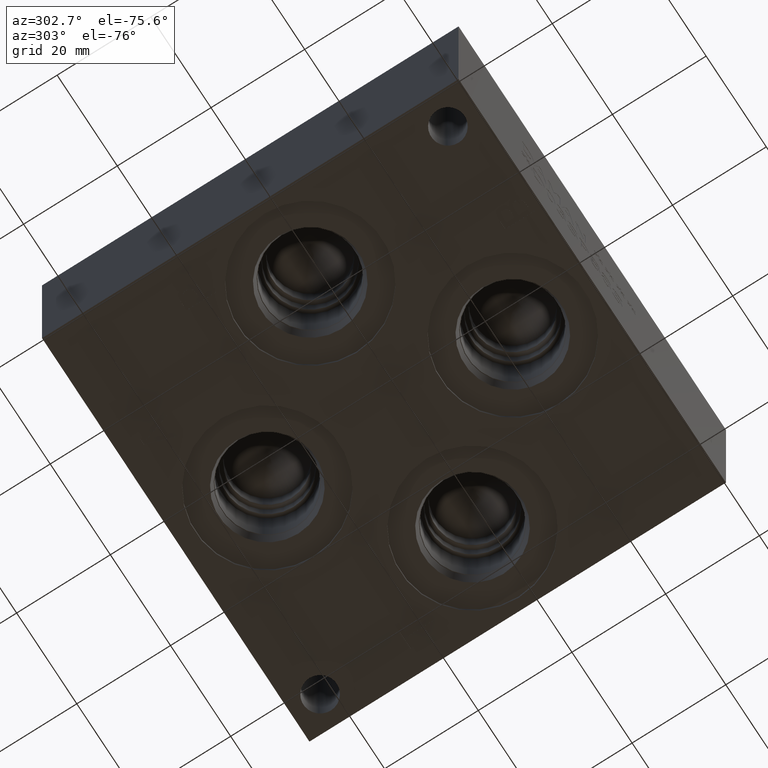
[diagram: clean part render]
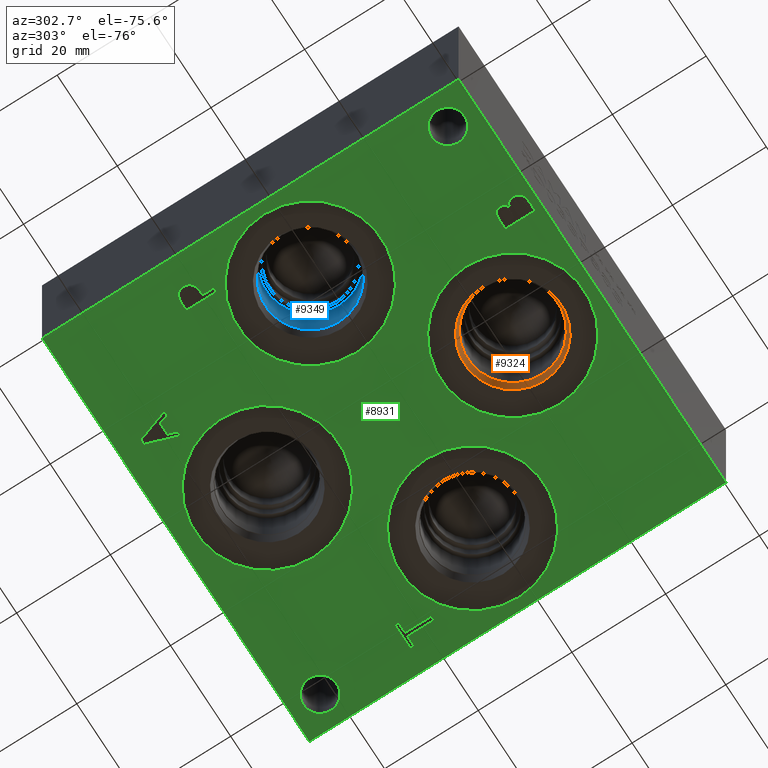
[diagram: same view with three faces highlighted in distinct colors, each labeled with its STEP entity id]
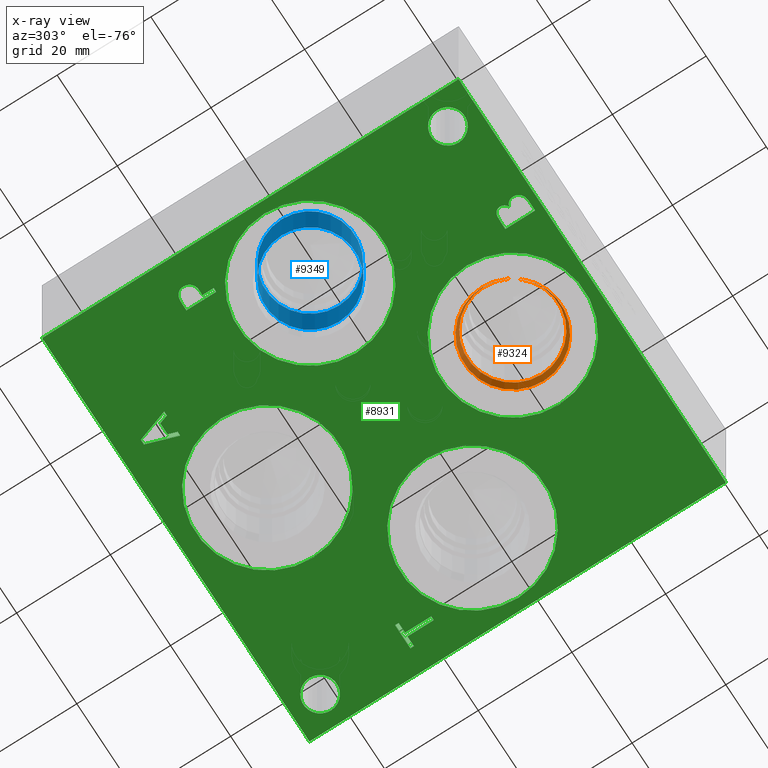
[diagram: x-ray of the same camera — body ghosted, the three highlighted faces saturated]
A machine part, auxiliary view with three faces highlighted in distinct colors.
The next image is the same camera in x-ray (body ghosted, the three faces saturated) — at least one of them is partly hidden behind the body in this view.
Their STEP definitions:

[orange] entity #9324 — the highlighted conical surface has half-angle 15 deg.
#18=CONICAL_SURFACE('',#9708,9.96315000000001,0.261799387657294);
#106=CIRCLE('',#9706,10.2997);
#107=CIRCLE('',#9707,10.2997);
#108=CIRCLE('',#9709,9.6266);
#109=CIRCLE('',#9710,9.6266);
#965=FACE_OUTER_BOUND('',#1490,.T.);
#1490=EDGE_LOOP('',(#8043,#8044,#8045,#8046,#8047,#8048));
#2400=LINE('',#15863,#3276);
#3276=VECTOR('',#11304,9.96315000000001);
#4378=VERTEX_POINT('',#15857);
#4379=VERTEX_POINT('',#15858);
#4380=VERTEX_POINT('',#15862);
#4381=VERTEX_POINT('',#15864);
#5631=EDGE_CURVE('',#4378,#4379,#106,.T.);
#5632=EDGE_CURVE('',#4379,#4378,#107,.T.);
#5633=EDGE_CURVE('',#4379,#4380,#2400,.T.);
#5634=EDGE_CURVE('',#4380,#4381,#108,.T.);
#5635=EDGE_CURVE('',#4381,#4380,#109,.T.);
#8043=ORIENTED_EDGE('',*,*,#5631,.F.);
#8044=ORIENTED_EDGE('',*,*,#5632,.F.);
#8045=ORIENTED_EDGE('',*,*,#5633,.T.);
#8046=ORIENTED_EDGE('',*,*,#5634,.T.);
#8047=ORIENTED_EDGE('',*,*,#5635,.T.);
#8048=ORIENTED_EDGE('',*,*,#5633,.F.);
#9324=ADVANCED_FACE('',(#965),#18,.F.);
#9706=AXIS2_PLACEMENT_3D('',#15859,#11298,#11299);
#9707=AXIS2_PLACEMENT_3D('',#15860,#11300,#11301);
#9708=AXIS2_PLACEMENT_3D('',#15861,#11302,#11303);
#9709=AXIS2_PLACEMENT_3D('',#15865,#11305,#11306);
#9710=AXIS2_PLACEMENT_3D('',#15866,#11307,#11308);
#11298=DIRECTION('center_axis',(0.,0.,1.));
#11299=DIRECTION('ref_axis',(1.,0.,0.));
#11300=DIRECTION('center_axis',(0.,0.,1.));
#11301=DIRECTION('ref_axis',(1.,0.,0.));
#11302=DIRECTION('center_axis',(0.,0.,-1.));
#11303=DIRECTION('ref_axis',(1.,0.,0.));
#11304=DIRECTION('',(0.258819044965499,3.16961914975373E-17,0.965925826325783));
#11305=DIRECTION('center_axis',(0.,0.,1.));
#11306=DIRECTION('ref_axis',(1.,0.,0.));
#11307=DIRECTION('center_axis',(0.,0.,1.));
#11308=DIRECTION('ref_axis',(1.,0.,0.));
#15857=CARTESIAN_POINT('',(55.5371,17.4625,0.7874));
#15858=CARTESIAN_POINT('',(34.9377,17.4625,0.787400000000001));
#15859=CARTESIAN_POINT('Origin',(45.2374,17.4625,0.7874));
#15860=CARTESIAN_POINT('Origin',(45.2374,17.4625,0.7874));
#15861=CARTESIAN_POINT('Origin',(45.2374,17.4625,2.0434217));
#15862=CARTESIAN_POINT('',(35.6108,17.4625,3.2994434));
#15863=CARTESIAN_POINT('',(35.27425,17.4625,2.0434217));
#15864=CARTESIAN_POINT('',(54.864,17.4625,3.2994434));
#15865=CARTESIAN_POINT('Origin',(45.2374,17.4625,3.2994434));
#15866=CARTESIAN_POINT('Origin',(45.2374,17.4625,3.2994434));

[blue] entity #9349 — the highlighted cylindrical surface (bore or boss wall) has radius 9.525 mm, axis along (0, 0, -1).
#55=CYLINDRICAL_SURFACE('',#9771,9.525);
#94=CIRCLE('',#9687,9.525);
#143=CIRCLE('',#9768,9.525);
#144=CIRCLE('',#9769,9.525);
#990=FACE_OUTER_BOUND('',#1519,.T.);
#1519=EDGE_LOOP('',(#8158,#8159,#8160,#8161,#8162));
#2421=LINE('',#15988,#3297);
#3297=VECTOR('',#11451,9.525);
#4366=VERTEX_POINT('',#15820);
#4419=VERTEX_POINT('',#15981);
#4420=VERTEX_POINT('',#15982);
#5614=EDGE_CURVE('',#4366,#4366,#94,.T.);
#5689=EDGE_CURVE('',#4419,#4420,#143,.T.);
#5690=EDGE_CURVE('',#4420,#4419,#144,.T.);
#5692=EDGE_CURVE('',#4366,#4420,#2421,.T.);
#8158=ORIENTED_EDGE('',*,*,#5614,.T.);
#8159=ORIENTED_EDGE('',*,*,#5692,.T.);
#8160=ORIENTED_EDGE('',*,*,#5689,.F.);
#8161=ORIENTED_EDGE('',*,*,#5690,.F.);
#8162=ORIENTED_EDGE('',*,*,#5692,.F.);
#9349=ADVANCED_FACE('',(#990),#55,.F.);
#9687=AXIS2_PLACEMENT_3D('',#15822,#11255,#11256);
#9768=AXIS2_PLACEMENT_3D('',#15983,#11443,#11444);
#9769=AXIS2_PLACEMENT_3D('',#15984,#11445,#11446);
#9771=AXIS2_PLACEMENT_3D('',#15987,#11449,#11450);
#11255=DIRECTION('center_axis',(0.,0.,-1.));
#11256=DIRECTION('ref_axis',(1.,0.,0.));
#11443=DIRECTION('center_axis',(0.,0.,-1.));
#11444=DIRECTION('ref_axis',(1.,0.,0.));
#11445=DIRECTION('center_axis',(0.,0.,-1.));
#11446=DIRECTION('ref_axis',(1.,0.,0.));
#11449=DIRECTION('center_axis',(0.,0.,-1.));
#11450=DIRECTION('ref_axis',(1.,0.,0.));
#11451=DIRECTION('',(0.,0.,1.));
#15820=CARTESIAN_POINT('',(7.9502,42.8752,3.4036));
#15822=CARTESIAN_POINT('Origin',(17.4752,42.8752,3.4036));
#15981=CARTESIAN_POINT('',(27.0002,42.8752,15.0622));
#15982=CARTESIAN_POINT('',(7.9502,42.8752,15.0622));
#15983=CARTESIAN_POINT('Origin',(17.4752,42.8752,15.0622));
#15984=CARTESIAN_POINT('Origin',(17.4752,42.8752,15.0622));
#15987=CARTESIAN_POINT('Origin',(17.4752,42.8752,7.5311));
#15988=CARTESIAN_POINT('',(7.9502,42.8752,7.5311));

[green] entity #8931 — the highlighted planar face has unit normal (0, 0, 1).
#76=CIRCLE('',#9418,15.3162);
#77=CIRCLE('',#9419,15.3162);
#78=CIRCLE('',#9420,15.3162);
#79=CIRCLE('',#9421,15.3162);
#80=CIRCLE('',#9422,15.3162);
#81=CIRCLE('',#9423,15.3162);
#82=CIRCLE('',#9424,15.3162);
#83=CIRCLE('',#9425,15.3162);
#84=CIRCLE('',#9426,3.5687);
#85=CIRCLE('',#9427,3.5687);
#213=FACE_BOUND('',#1054,.T.);
#214=FACE_BOUND('',#1055,.T.);
#215=FACE_BOUND('',#1056,.T.);
#216=FACE_BOUND('',#1057,.T.);
#217=FACE_BOUND('',#1058,.T.);
#218=FACE_BOUND('',#1059,.T.);
#219=FACE_BOUND('',#1060,.T.);
#220=FACE_BOUND('',#1061,.T.);
#221=FACE_BOUND('',#1062,.T.);
#222=FACE_BOUND('',#1063,.T.);
#288=PLANE('',#9417);
#572=FACE_OUTER_BOUND('',#1053,.T.);
#1053=EDGE_LOOP('',(#5875,#5876,#5877,#5878));
#1054=EDGE_LOOP('',(#5879,#5880,#5881,#5882,#5883,#5884,#5885,#5886));
#1055=EDGE_LOOP('',(#5887,#5888));
#1056=EDGE_LOOP('',(#5889,#5890));
#1057=EDGE_LOOP('',(#5891,#5892));
#1058=EDGE_LOOP('',(#5893,#5894));
#1059=EDGE_LOOP('',(#5895));
#1060=EDGE_LOOP('',(#5896));
#1061=EDGE_LOOP('',(#5897,#5898,#5899,#5900,#5901,#5902,#5903,#5904,#5905,
#5906));
#1062=EDGE_LOOP('',(#5907,#5908,#5909,#5910,#5911,#5912,#5913,#5914));
#1063=EDGE_LOOP('',(#5915,#5916,#5917,#5918,#5919,#5920,#5921,#5922,#5923));
#1598=LINE('',#11846,#2474);
#1601=LINE('',#11852,#2477);
#1604=LINE('',#11858,#2480);
#1607=LINE('',#11864,#2483);
#1610=LINE('',#11870,#2486);
#1614=LINE('',#11913,#2490);
#1615=LINE('',#11915,#2491);
#1616=LINE('',#11917,#2492);
#1617=LINE('',#11918,#2493);
#1618=LINE('',#11921,#2494);
#1619=LINE('',#11923,#2495);
#1620=LINE('',#11925,#2496);
#1621=LINE('',#11927,#2497);
#1622=LINE('',#11929,#2498);
#1623=LINE('',#11931,#2499);
#1624=LINE('',#11933,#2500);
#1625=LINE('',#11934,#2501);
#1626=LINE('',#11972,#2502);
#1627=LINE('',#11974,#2503);
#1628=LINE('',#11976,#2504);
#1629=LINE('',#11992,#2505);
#1630=LINE('',#11995,#2506);
#1631=LINE('',#11997,#2507);
#1632=LINE('',#11999,#2508);
#1633=LINE('',#12001,#2509);
#1634=LINE('',#12003,#2510);
#1635=LINE('',#12005,#2511);
#1636=LINE('',#12007,#2512);
#1637=LINE('',#12008,#2513);
#2474=VECTOR('',#9908,10.);
#2477=VECTOR('',#9913,10.);
#2480=VECTOR('',#9918,10.);
#2483=VECTOR('',#9923,10.);
#2486=VECTOR('',#9928,10.);
#2490=VECTOR('',#9936,10.);
#2491=VECTOR('',#9937,10.);
#2492=VECTOR('',#9938,10.);
#2493=VECTOR('',#9939,10.);
#2494=VECTOR('',#9940,10.);
#2495=VECTOR('',#9941,10.);
#2496=VECTOR('',#9942,10.);
#2497=VECTOR('',#9943,10.);
#2498=VECTOR('',#9944,10.);
#2499=VECTOR('',#9945,10.);
#2500=VECTOR('',#9946,10.);
#2501=VECTOR('',#9947,10.);
#2502=VECTOR('',#9968,10.);
#2503=VECTOR('',#9969,10.);
#2504=VECTOR('',#9970,10.);
#2505=VECTOR('',#9971,10.);
#2506=VECTOR('',#9972,10.);
#2507=VECTOR('',#9973,10.);
#2508=VECTOR('',#9974,10.);
#2509=VECTOR('',#9975,10.);
#2510=VECTOR('',#9976,10.);
#2511=VECTOR('',#9977,10.);
#2512=VECTOR('',#9978,10.);
#2513=VECTOR('',#9979,10.);
#3342=B_SPLINE_CURVE_WITH_KNOTS('',2,(#11813,#11814,#11815,#11816),
 .UNSPECIFIED.,.F.,.F.,(3,1,3),(0.,1.,2.),.UNSPECIFIED.);
#3344=B_SPLINE_CURVE_WITH_KNOTS('',2,(#11834,#11835,#11836,#11837),
 .UNSPECIFIED.,.F.,.F.,(3,1,3),(0.,1.,2.),.UNSPECIFIED.);
#3346=B_SPLINE_CURVE_WITH_KNOTS('',2,(#11883,#11884,#11885,#11886),
 .UNSPECIFIED.,.F.,.F.,(3,1,3),(0.,1.,2.),.UNSPECIFIED.);
#3348=B_SPLINE_CURVE_WITH_KNOTS('',2,(#11901,#11902,#11903,#11904),
 .UNSPECIFIED.,.F.,.F.,(3,1,3),(0.,1.,2.),.UNSPECIFIED.);
#3350=B_SPLINE_CURVE_WITH_KNOTS('',2,(#11957,#11958,#11959,#11960),
 .UNSPECIFIED.,.F.,.F.,(3,1,3),(0.,1.,2.),.UNSPECIFIED.);
#3351=B_SPLINE_CURVE_WITH_KNOTS('',2,(#11962,#11963,#11964,#11965),
 .UNSPECIFIED.,.F.,.F.,(3,1,3),(0.,1.,2.),.UNSPECIFIED.);
#3352=B_SPLINE_CURVE_WITH_KNOTS('',2,(#11967,#11968,#11969,#11970),
 .UNSPECIFIED.,.F.,.F.,(3,1,3),(0.,1.,2.),.UNSPECIFIED.);
#3353=B_SPLINE_CURVE_WITH_KNOTS('',2,(#11978,#11979,#11980,#11981),
 .UNSPECIFIED.,.F.,.F.,(3,1,3),(0.,1.,2.),.UNSPECIFIED.);
#3354=B_SPLINE_CURVE_WITH_KNOTS('',2,(#11983,#11984,#11985,#11986),
 .UNSPECIFIED.,.F.,.F.,(3,1,3),(0.,1.,2.),.UNSPECIFIED.);
#3355=B_SPLINE_CURVE_WITH_KNOTS('',2,(#11988,#11989,#11990,#11991),
 .UNSPECIFIED.,.F.,.F.,(3,1,3),(0.,1.,2.),.UNSPECIFIED.);
#3632=VERTEX_POINT('',#11811);
#3633=VERTEX_POINT('',#11812);
#3636=VERTEX_POINT('',#11833);
#3638=VERTEX_POINT('',#11845);
#3640=VERTEX_POINT('',#11851);
#3642=VERTEX_POINT('',#11857);
#3644=VERTEX_POINT('',#11863);
#3646=VERTEX_POINT('',#11869);
#3648=VERTEX_POINT('',#11882);
#3650=VERTEX_POINT('',#11911);
#3651=VERTEX_POINT('',#11912);
#3652=VERTEX_POINT('',#11914);
#3653=VERTEX_POINT('',#11916);
#3654=VERTEX_POINT('',#11919);
#3655=VERTEX_POINT('',#11920);
#3656=VERTEX_POINT('',#11922);
#3657=VERTEX_POINT('',#11924);
#3658=VERTEX_POINT('',#11926);
#3659=VERTEX_POINT('',#11928);
#3660=VERTEX_POINT('',#11930);
#3661=VERTEX_POINT('',#11932);
#3662=VERTEX_POINT('',#11935);
#3663=VERTEX_POINT('',#11936);
#3664=VERTEX_POINT('',#11939);
#3665=VERTEX_POINT('',#11940);
#3666=VERTEX_POINT('',#11943);
#3667=VERTEX_POINT('',#11944);
#3668=VERTEX_POINT('',#11947);
#3669=VERTEX_POINT('',#11948);
#3670=VERTEX_POINT('',#11951);
#3671=VERTEX_POINT('',#11953);
#3672=VERTEX_POINT('',#11955);
#3673=VERTEX_POINT('',#11956);
#3674=VERTEX_POINT('',#11961);
#3675=VERTEX_POINT('',#11966);
#3676=VERTEX_POINT('',#11971);
#3677=VERTEX_POINT('',#11973);
#3678=VERTEX_POINT('',#11975);
#3679=VERTEX_POINT('',#11977);
#3680=VERTEX_POINT('',#11982);
#3681=VERTEX_POINT('',#11987);
#3682=VERTEX_POINT('',#11993);
#3683=VERTEX_POINT('',#11994);
#3684=VERTEX_POINT('',#11996);
#3685=VERTEX_POINT('',#11998);
#3686=VERTEX_POINT('',#12000);
#3687=VERTEX_POINT('',#12002);
#3688=VERTEX_POINT('',#12004);
#3689=VERTEX_POINT('',#12006);
#4520=EDGE_CURVE('',#3632,#3633,#3342,.T.);
#4524=EDGE_CURVE('',#3636,#3632,#3344,.T.);
#4527=EDGE_CURVE('',#3638,#3636,#1598,.T.);
#4530=EDGE_CURVE('',#3640,#3638,#1601,.T.);
#4533=EDGE_CURVE('',#3642,#3640,#1604,.T.);
#4536=EDGE_CURVE('',#3644,#3642,#1607,.T.);
#4539=EDGE_CURVE('',#3646,#3644,#1610,.T.);
#4542=EDGE_CURVE('',#3648,#3646,#3346,.T.);
#4545=EDGE_CURVE('',#3633,#3648,#3348,.T.);
#4547=EDGE_CURVE('',#3650,#3651,#1614,.T.);
#4548=EDGE_CURVE('',#3652,#3650,#1615,.T.);
#4549=EDGE_CURVE('',#3653,#3652,#1616,.T.);
#4550=EDGE_CURVE('',#3651,#3653,#1617,.T.);
#4551=EDGE_CURVE('',#3654,#3655,#1618,.T.);
#4552=EDGE_CURVE('',#3655,#3656,#1619,.T.);
#4553=EDGE_CURVE('',#3656,#3657,#1620,.T.);
#4554=EDGE_CURVE('',#3657,#3658,#1621,.T.);
#4555=EDGE_CURVE('',#3658,#3659,#1622,.T.);
#4556=EDGE_CURVE('',#3659,#3660,#1623,.T.);
#4557=EDGE_CURVE('',#3660,#3661,#1624,.T.);
#4558=EDGE_CURVE('',#3661,#3654,#1625,.T.);
#4559=EDGE_CURVE('',#3662,#3663,#76,.T.);
#4560=EDGE_CURVE('',#3663,#3662,#77,.T.);
#4561=EDGE_CURVE('',#3664,#3665,#78,.T.);
#4562=EDGE_CURVE('',#3665,#3664,#79,.T.);
#4563=EDGE_CURVE('',#3666,#3667,#80,.T.);
#4564=EDGE_CURVE('',#3667,#3666,#81,.T.);
#4565=EDGE_CURVE('',#3668,#3669,#82,.T.);
#4566=EDGE_CURVE('',#3669,#3668,#83,.T.);
#4567=EDGE_CURVE('',#3670,#3670,#84,.T.);
#4568=EDGE_CURVE('',#3671,#3671,#85,.T.);
#4569=EDGE_CURVE('',#3672,#3673,#3350,.T.);
#4570=EDGE_CURVE('',#3673,#3674,#3351,.T.);
#4571=EDGE_CURVE('',#3674,#3675,#3352,.T.);
#4572=EDGE_CURVE('',#3675,#3676,#1626,.T.);
#4573=EDGE_CURVE('',#3676,#3677,#1627,.T.);
#4574=EDGE_CURVE('',#3677,#3678,#1628,.T.);
#4575=EDGE_CURVE('',#3678,#3679,#3353,.T.);
#4576=EDGE_CURVE('',#3679,#3680,#3354,.T.);
#4577=EDGE_CURVE('',#3680,#3681,#3355,.T.);
#4578=EDGE_CURVE('',#3681,#3672,#1629,.T.);
#4579=EDGE_CURVE('',#3682,#3683,#1630,.T.);
#4580=EDGE_CURVE('',#3683,#3684,#1631,.T.);
#4581=EDGE_CURVE('',#3684,#3685,#1632,.T.);
#4582=EDGE_CURVE('',#3685,#3686,#1633,.T.);
#4583=EDGE_CURVE('',#3686,#3687,#1634,.T.);
#4584=EDGE_CURVE('',#3687,#3688,#1635,.T.);
#4585=EDGE_CURVE('',#3688,#3689,#1636,.T.);
#4586=EDGE_CURVE('',#3689,#3682,#1637,.T.);
#5875=ORIENTED_EDGE('',*,*,#4547,.F.);
#5876=ORIENTED_EDGE('',*,*,#4548,.F.);
#5877=ORIENTED_EDGE('',*,*,#4549,.F.);
#5878=ORIENTED_EDGE('',*,*,#4550,.F.);
#5879=ORIENTED_EDGE('',*,*,#4551,.T.);
#5880=ORIENTED_EDGE('',*,*,#4552,.T.);
#5881=ORIENTED_EDGE('',*,*,#4553,.T.);
#5882=ORIENTED_EDGE('',*,*,#4554,.T.);
#5883=ORIENTED_EDGE('',*,*,#4555,.T.);
#5884=ORIENTED_EDGE('',*,*,#4556,.T.);
#5885=ORIENTED_EDGE('',*,*,#4557,.T.);
#5886=ORIENTED_EDGE('',*,*,#4558,.T.);
#5887=ORIENTED_EDGE('',*,*,#4559,.T.);
#5888=ORIENTED_EDGE('',*,*,#4560,.T.);
#5889=ORIENTED_EDGE('',*,*,#4561,.T.);
#5890=ORIENTED_EDGE('',*,*,#4562,.T.);
#5891=ORIENTED_EDGE('',*,*,#4563,.T.);
#5892=ORIENTED_EDGE('',*,*,#4564,.T.);
#5893=ORIENTED_EDGE('',*,*,#4565,.T.);
#5894=ORIENTED_EDGE('',*,*,#4566,.T.);
#5895=ORIENTED_EDGE('',*,*,#4567,.T.);
#5896=ORIENTED_EDGE('',*,*,#4568,.T.);
#5897=ORIENTED_EDGE('',*,*,#4569,.T.);
#5898=ORIENTED_EDGE('',*,*,#4570,.T.);
#5899=ORIENTED_EDGE('',*,*,#4571,.T.);
#5900=ORIENTED_EDGE('',*,*,#4572,.T.);
#5901=ORIENTED_EDGE('',*,*,#4573,.T.);
#5902=ORIENTED_EDGE('',*,*,#4574,.T.);
#5903=ORIENTED_EDGE('',*,*,#4575,.T.);
#5904=ORIENTED_EDGE('',*,*,#4576,.T.);
#5905=ORIENTED_EDGE('',*,*,#4577,.T.);
#5906=ORIENTED_EDGE('',*,*,#4578,.T.);
#5907=ORIENTED_EDGE('',*,*,#4579,.T.);
#5908=ORIENTED_EDGE('',*,*,#4580,.T.);
#5909=ORIENTED_EDGE('',*,*,#4581,.T.);
#5910=ORIENTED_EDGE('',*,*,#4582,.T.);
#5911=ORIENTED_EDGE('',*,*,#4583,.T.);
#5912=ORIENTED_EDGE('',*,*,#4584,.T.);
#5913=ORIENTED_EDGE('',*,*,#4585,.T.);
#5914=ORIENTED_EDGE('',*,*,#4586,.T.);
#5915=ORIENTED_EDGE('',*,*,#4520,.T.);
#5916=ORIENTED_EDGE('',*,*,#4545,.T.);
#5917=ORIENTED_EDGE('',*,*,#4542,.T.);
#5918=ORIENTED_EDGE('',*,*,#4539,.T.);
#5919=ORIENTED_EDGE('',*,*,#4536,.T.);
#5920=ORIENTED_EDGE('',*,*,#4533,.T.);
#5921=ORIENTED_EDGE('',*,*,#4530,.T.);
#5922=ORIENTED_EDGE('',*,*,#4527,.T.);
#5923=ORIENTED_EDGE('',*,*,#4524,.T.);
#8931=ADVANCED_FACE('',(#572,#213,#214,#215,#216,#217,#218,#219,#220,#221,
#222),#288,.F.);
#9417=AXIS2_PLACEMENT_3D('',#11910,#9934,#9935);
#9418=AXIS2_PLACEMENT_3D('',#11937,#9948,#9949);
#9419=AXIS2_PLACEMENT_3D('',#11938,#9950,#9951);
#9420=AXIS2_PLACEMENT_3D('',#11941,#9952,#9953);
#9421=AXIS2_PLACEMENT_3D('',#11942,#9954,#9955);
#9422=AXIS2_PLACEMENT_3D('',#11945,#9956,#9957);
#9423=AXIS2_PLACEMENT_3D('',#11946,#9958,#9959);
#9424=AXIS2_PLACEMENT_3D('',#11949,#9960,#9961);
#9425=AXIS2_PLACEMENT_3D('',#11950,#9962,#9963);
#9426=AXIS2_PLACEMENT_3D('',#11952,#9964,#9965);
#9427=AXIS2_PLACEMENT_3D('',#11954,#9966,#9967);
#9908=DIRECTION('',(-1.,0.,0.));
#9913=DIRECTION('',(-3.14708893596576E-15,1.,0.));
#9918=DIRECTION('',(1.,0.,0.));
#9923=DIRECTION('',(2.81413604853751E-15,-1.,0.));
#9928=DIRECTION('',(1.,0.,0.));
#9934=DIRECTION('center_axis',(0.,0.,1.));
#9935=DIRECTION('ref_axis',(1.,0.,0.));
#9936=DIRECTION('',(1.,0.,0.));
#9937=DIRECTION('',(0.,-1.,0.));
#9938=DIRECTION('',(-1.,0.,0.));
#9939=DIRECTION('',(0.,1.,0.));
#9940=DIRECTION('',(1.,1.03976111030302E-14,0.));
#9941=DIRECTION('',(-0.319451166674571,0.94760273960677,0.));
#9942=DIRECTION('',(-1.,0.,0.));
#9943=DIRECTION('',(-0.319451166674564,-0.947602739606772,0.));
#9944=DIRECTION('',(1.,0.,0.));
#9945=DIRECTION('',(0.308774363938379,0.951135317488763,0.));
#9946=DIRECTION('',(1.,3.6645508346136E-15,0.));
#9947=DIRECTION('',(0.308774363938383,-0.951135317488761,0.));
#9948=DIRECTION('center_axis',(0.,0.,1.));
#9949=DIRECTION('ref_axis',(1.,0.,0.));
#9950=DIRECTION('center_axis',(0.,0.,1.));
#9951=DIRECTION('ref_axis',(1.,0.,0.));
#9952=DIRECTION('center_axis',(0.,0.,1.));
#9953=DIRECTION('ref_axis',(1.,0.,0.));
#9954=DIRECTION('center_axis',(0.,0.,1.));
#9955=DIRECTION('ref_axis',(1.,0.,0.));
#9956=DIRECTION('center_axis',(0.,0.,1.));
#9957=DIRECTION('ref_axis',(1.,0.,0.));
#9958=DIRECTION('center_axis',(0.,0.,1.));
#9959=DIRECTION('ref_axis',(1.,0.,0.));
#9960=DIRECTION('center_axis',(0.,0.,1.));
#9961=DIRECTION('ref_axis',(1.,0.,0.));
#9962=DIRECTION('center_axis',(0.,0.,1.));
#9963=DIRECTION('ref_axis',(1.,0.,0.));
#9964=DIRECTION('center_axis',(0.,0.,1.));
#9965=DIRECTION('ref_axis',(1.,0.,0.));
#9966=DIRECTION('center_axis',(0.,0.,1.));
#9967=DIRECTION('ref_axis',(1.,0.,0.));
#9968=DIRECTION('',(1.,9.75143188193786E-15,0.));
#9969=DIRECTION('',(-2.79741238752512E-15,1.,0.));
#9970=DIRECTION('',(-1.,-1.05565959822814E-14,0.));
#9971=DIRECTION('',(0.,-1.,0.));
#9972=DIRECTION('',(1.,0.,0.));
#9973=DIRECTION('',(-3.17280044688052E-15,1.,0.));
#9974=DIRECTION('',(1.,0.,0.));
#9975=DIRECTION('',(0.,1.,0.));
#9976=DIRECTION('',(-1.,-3.47984565141734E-15,0.));
#9977=DIRECTION('',(0.,-1.,0.));
#9978=DIRECTION('',(1.,8.33818088455555E-15,0.));
#9979=DIRECTION('',(3.17280044688052E-15,-1.,0.));
#11811=CARTESIAN_POINT('',(6.41818279764059,63.8975181439707,0.));
#11812=CARTESIAN_POINT('',(5.661740345468,62.3794873726039,0.));
#11813=CARTESIAN_POINT('Ctrl Pts',(6.41818279764059,63.8975181439707,0.));
#11814=CARTESIAN_POINT('Ctrl Pts',(6.06311797315142,63.6556623939563,0.));
#11815=CARTESIAN_POINT('Ctrl Pts',(5.661740345468,62.9095116758269,0.));
#11816=CARTESIAN_POINT('Ctrl Pts',(5.661740345468,62.3794873726039,0.));
#11833=CARTESIAN_POINT('',(8.08029784561168,64.2937499046326,0.));
#11834=CARTESIAN_POINT('Ctrl Pts',(8.08029784561168,64.2937499046326,0.));
#11835=CARTESIAN_POINT('Ctrl Pts',(7.51425247323763,64.2937499046326,0.));
#11836=CARTESIAN_POINT('Ctrl Pts',(6.72178895191395,64.1084986918556,0.));
#11837=CARTESIAN_POINT('Ctrl Pts',(6.41818279764059,63.8975181439707,0.));
#11845=CARTESIAN_POINT('',(9.67551662230219,64.2937499046326,0.));
#11846=CARTESIAN_POINT('',(27.0627583111511,64.2937499046326,0.));
#11851=CARTESIAN_POINT('',(9.67551662230221,57.94375,0.));
#11852=CARTESIAN_POINT('',(9.67551662230223,51.196875,0.));
#11857=CARTESIAN_POINT('',(8.83159443076272,57.94375,0.));
#11858=CARTESIAN_POINT('',(26.6407972153814,57.94375,0.));
#11863=CARTESIAN_POINT('',(8.83159443076271,60.3108488299279,0.));
#11864=CARTESIAN_POINT('',(8.83159443076273,52.3804244149639,0.));
#11869=CARTESIAN_POINT('',(8.11631891476277,60.3108488299279,0.));
#11870=CARTESIAN_POINT('',(26.2831594573814,60.3108488299279,0.));
#11882=CARTESIAN_POINT('',(6.2174939837989,60.9695198086904,0.));
#11883=CARTESIAN_POINT('Ctrl Pts',(6.2174939837989,60.9695198086904,0.));
#11884=CARTESIAN_POINT('Ctrl Pts',(6.54682947318016,60.6453301863307,0.));
#11885=CARTESIAN_POINT('Ctrl Pts',(7.43706446791391,60.3108488299279,0.));
#11886=CARTESIAN_POINT('Ctrl Pts',(8.11631891476277,60.3108488299279,0.));
#11901=CARTESIAN_POINT('Ctrl Pts',(5.661740345468,62.3794873726039,0.));
#11902=CARTESIAN_POINT('Ctrl Pts',(5.661740345468,61.9678180108774,0.));
#11903=CARTESIAN_POINT('Ctrl Pts',(5.9550547656982,61.2268131597695,0.));
#11904=CARTESIAN_POINT('Ctrl Pts',(6.2174939837989,60.9695198086904,0.));
#11910=CARTESIAN_POINT('Origin',(44.45,44.45,0.));
#11911=CARTESIAN_POINT('',(0.,0.,0.));
#11912=CARTESIAN_POINT('',(88.9,0.,0.));
#11913=CARTESIAN_POINT('',(0.,0.,0.));
#11914=CARTESIAN_POINT('',(0.,88.9,0.));
#11915=CARTESIAN_POINT('',(0.,88.9,0.));
#11916=CARTESIAN_POINT('',(88.9,88.9,0.));
#11917=CARTESIAN_POINT('',(88.9,88.9,0.));
#11918=CARTESIAN_POINT('',(88.9,0.,0.));
#11919=CARTESIAN_POINT('',(27.76195301059,77.7875,0.));
#11920=CARTESIAN_POINT('',(28.6161669361727,77.7875,0.));
#11921=CARTESIAN_POINT('',(36.1059765052948,77.7875000000001,0.));
#11922=CARTESIAN_POINT('',(26.4754862551944,84.1374999046326,0.));
#11923=CARTESIAN_POINT('',(34.4699247273352,60.4232280906382,0.));
#11924=CARTESIAN_POINT('',(25.4360211168348,84.1374999046326,0.));
#11925=CARTESIAN_POINT('',(35.4627431275972,84.1374999046326,0.));
#11926=CARTESIAN_POINT('',(23.2953404358566,77.7875,0.));
#11927=CARTESIAN_POINT('',(20.3992432129638,69.1966731417074,0.));
#11928=CARTESIAN_POINT('',(24.1855754305903,77.7875,0.));
#11929=CARTESIAN_POINT('',(33.8726702179283,77.7875,0.));
#11930=CARTESIAN_POINT('',(24.7619125370075,79.5628241224459,0.));
#11931=CARTESIAN_POINT('',(20.2562149497729,65.6836663760536,0.));
#11932=CARTESIAN_POINT('',(27.1856159041728,79.5628241224459,0.));
#11933=CARTESIAN_POINT('',(34.6059562685037,79.5628241224459,0.));
#11934=CARTESIAN_POINT('',(33.1646989639717,61.1451129114582,0.));
#11935=CARTESIAN_POINT('',(32.7914,42.8752,0.));
#11936=CARTESIAN_POINT('',(2.159,42.8752,0.));
#11937=CARTESIAN_POINT('Origin',(17.4752,42.8752,0.));
#11938=CARTESIAN_POINT('Origin',(17.4752,42.8752,0.));
#11939=CARTESIAN_POINT('',(86.741,42.8752,0.));
#11940=CARTESIAN_POINT('',(56.1086,42.8752,0.));
#11941=CARTESIAN_POINT('Origin',(71.4248,42.8752,0.));
#11942=CARTESIAN_POINT('Origin',(71.4248,42.8752,0.));
#11943=CARTESIAN_POINT('',(60.5536,17.4625,0.));
#11944=CARTESIAN_POINT('',(29.9212,17.4625,0.));
#11945=CARTESIAN_POINT('Origin',(45.2374,17.4625,0.));
#11946=CARTESIAN_POINT('Origin',(45.2374,17.4625,0.));
#11947=CARTESIAN_POINT('',(60.5536,69.85,0.));
#11948=CARTESIAN_POINT('',(29.9212,69.85,0.));
#11949=CARTESIAN_POINT('Origin',(45.2374,69.85,0.));
#11950=CARTESIAN_POINT('Origin',(45.2374,69.85,0.));
#11951=CARTESIAN_POINT('',(2.7813,6.35,0.));
#11952=CARTESIAN_POINT('Origin',(6.35,6.35,0.));
#11953=CARTESIAN_POINT('',(78.9813,82.55,0.));
#11954=CARTESIAN_POINT('Origin',(82.55,82.55,0.));
#11955=CARTESIAN_POINT('',(24.8133712072233,5.11756477680544,0.));
#11956=CARTESIAN_POINT('',(23.6246759252378,3.53778360117968,0.));
#11957=CARTESIAN_POINT('Ctrl Pts',(24.8133712072233,5.11756477680544,0.));
#11958=CARTESIAN_POINT('Ctrl Pts',(24.2473258348493,4.96318876615797,0.));
#11959=CARTESIAN_POINT('Ctrl Pts',(23.6246759252378,4.14499590972639,0.));
#11960=CARTESIAN_POINT('Ctrl Pts',(23.6246759252378,3.53778360117968,0.));
#11961=CARTESIAN_POINT('',(24.2833469040004,2.1020867021582,0.));
#11962=CARTESIAN_POINT('Ctrl Pts',(23.6246759252378,3.53778360117968,0.));
#11963=CARTESIAN_POINT('Ctrl Pts',(23.6246759252378,3.0643638351941,0.));
#11964=CARTESIAN_POINT('Ctrl Pts',(23.9848866167486,2.338796585151,0.));
#11965=CARTESIAN_POINT('Ctrl Pts',(24.2833469040004,2.1020867021582,0.));
#11966=CARTESIAN_POINT('',(26.1101296966621,1.58749999999998,0.));
#11967=CARTESIAN_POINT('Ctrl Pts',(24.2833469040004,2.1020867021582,0.));
#11968=CARTESIAN_POINT('Ctrl Pts',(24.6435575955111,1.82420988299276,0.));
#11969=CARTESIAN_POINT('Ctrl Pts',(25.4617504519427,1.58749999999998,0.));
#11970=CARTESIAN_POINT('Ctrl Pts',(26.1101296966621,1.58749999999998,0.));
#11971=CARTESIAN_POINT('',(27.9317666223022,1.5875,0.));
#11972=CARTESIAN_POINT('',(35.2800648483313,1.58750000000007,0.));
#11973=CARTESIAN_POINT('',(27.9317666223022,7.93749990463256,0.));
#11974=CARTESIAN_POINT('',(27.9317666223021,23.01875,0.));
#11975=CARTESIAN_POINT('',(26.2490681062448,7.93749990463255,0.));
#11976=CARTESIAN_POINT('',(36.1908833111513,7.93749990463265,0.));
#11977=CARTESIAN_POINT('',(24.5818071912521,7.68020655355343,0.));
#11978=CARTESIAN_POINT('Ctrl Pts',(26.2490681062448,7.93749990463255,0.));
#11979=CARTESIAN_POINT('Ctrl Pts',(25.5698136593959,7.93749990463255,0.));
#11980=CARTESIAN_POINT('Ctrl Pts',(24.890559212547,7.85002016526565,0.));
#11981=CARTESIAN_POINT('Ctrl Pts',(24.5818071912521,7.68020655355343,0.));
#11982=CARTESIAN_POINT('',(23.9231362124896,6.50694887263267,0.));
#11983=CARTESIAN_POINT('Ctrl Pts',(24.5818071912521,7.68020655355343,0.));
#11984=CARTESIAN_POINT('Ctrl Pts',(24.2370341008061,7.50010120779805,0.));
#11985=CARTESIAN_POINT('Ctrl Pts',(23.9231362124896,6.90832650031608,0.));
#11986=CARTESIAN_POINT('Ctrl Pts',(23.9231362124896,6.50694887263267,0.));
#11987=CARTESIAN_POINT('',(24.8133712072233,5.14843997893493,0.));
#11988=CARTESIAN_POINT('Ctrl Pts',(23.9231362124896,6.50694887263267,0.));
#11989=CARTESIAN_POINT('Ctrl Pts',(23.9231362124896,6.059258441755,0.));
#11990=CARTESIAN_POINT('Ctrl Pts',(24.3965559784752,5.34912879277664,0.));
#11991=CARTESIAN_POINT('Ctrl Pts',(24.8133712072233,5.14843997893493,0.));
#11992=CARTESIAN_POINT('',(24.8133712072233,24.7992199894675,0.));
#11993=CARTESIAN_POINT('',(81.168334728547,57.94375,0.));
#11994=CARTESIAN_POINT('',(82.0122569200865,57.94375,0.));
#11995=CARTESIAN_POINT('',(62.8091673642735,57.94375,0.));
#11996=CARTESIAN_POINT('',(82.0122569200865,63.5424533194816,0.));
#11997=CARTESIAN_POINT('',(82.0122569200865,51.1968750000001,0.));
#11998=CARTESIAN_POINT('',(84.1426458670215,63.5424533194816,0.));
#11999=CARTESIAN_POINT('',(63.2311284600432,63.5424533194816,0.));
#12000=CARTESIAN_POINT('',(84.1426458670215,64.2937499046326,0.));
#12001=CARTESIAN_POINT('',(84.1426458670215,53.9962266597408,0.));
#12002=CARTESIAN_POINT('',(79.0379457816119,64.2937499046326,0.));
#12003=CARTESIAN_POINT('',(64.2963229335107,64.2937499046325,0.));
#12004=CARTESIAN_POINT('',(79.0379457816119,63.5424533194816,0.));
#12005=CARTESIAN_POINT('',(79.0379457816119,54.3718749523163,0.));
#12006=CARTESIAN_POINT('',(81.168334728547,63.5424533194816,0.));
#12007=CARTESIAN_POINT('',(61.7439728908059,63.5424533194814,0.));
#12008=CARTESIAN_POINT('',(81.168334728547,53.9962266597408,0.));